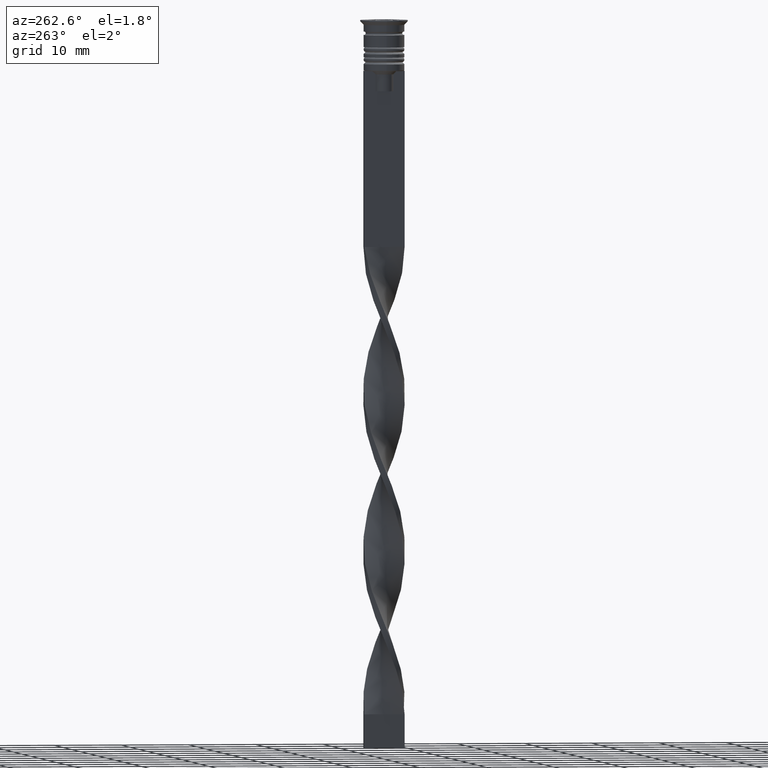
[diagram: clean part render]
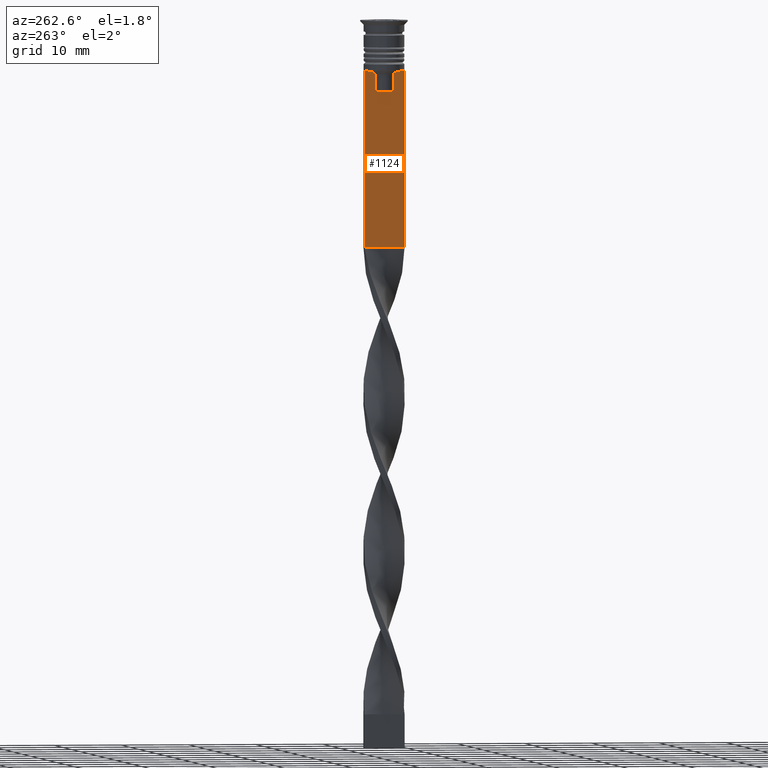
[diagram: same view with one face highlighted and labeled with its STEP entity id]
A machine part, auxiliary view. The second image highlights one B-rep face of the part: STEP entity #1124.
In plain terms, the highlighted planar face has unit normal (-1, 0, 0).
Its self-contained STEP definition (entity closure, byte-faithful):
#41 = CARTESIAN_POINT ( 'NONE',  ( -0.5000000000000001110, 1.307669683062199217, 0.000000000000000000 ) ) ;
#72 = CARTESIAN_POINT ( 'NONE',  ( -0.5000000000000001110, 3.000000000000000000, -33.50000000000000000 ) ) ;
#78 = DIRECTION ( 'NONE',  ( 0.000000000000000000, 1.000000000000000000, 0.000000000000000000 ) ) ;
#81 = B_SPLINE_CURVE_WITH_KNOTS ( 'NONE', 3,
 ( #2464, #1558, #239, #1063 ),
 .UNSPECIFIED., .F., .F.,
 ( 4, 4 ),
 ( 0.007225659348748070081, 0.007950554640278040958 ),
 .UNSPECIFIED. ) ;
#102 = CARTESIAN_POINT ( 'NONE',  ( -0.5000000000000001110, -3.000000000000000000, -7.500000000000000000 ) ) ;
#126 = LINE ( 'NONE', #682, #333 ) ;
#133 = ORIENTED_EDGE ( 'NONE', *, *, #3336, .F. ) ;
#144 = ORIENTED_EDGE ( 'NONE', *, *, #1365, .F. ) ;
#212 = DIRECTION ( 'NONE',  ( 0.000000000000000000, -1.000000000000000000, 0.000000000000000000 ) ) ;
#227 = CARTESIAN_POINT ( 'NONE',  ( -0.5000000000000001110, -2.856571371417139904, -7.500000000000000000 ) ) ;
#239 = CARTESIAN_POINT ( 'NONE',  ( -0.5000000000000001110, -1.659011726860414093, -7.667884880598472286 ) ) ;
#271 = EDGE_CURVE ( 'NONE', #3306, #3049, #1434, .T. ) ;
#288 = VERTEX_POINT ( 'NONE', #1032 ) ;
#310 = DIRECTION ( 'NONE',  ( 0.000000000000000000, 0.000000000000000000, -1.000000000000000000 ) ) ;
#313 = EDGE_LOOP ( 'NONE', ( #2565, #843, #3111, #3092, #2075, #2915, #144, #2603, #830, #3390, #133, #2379 ) ) ;
#330 = CARTESIAN_POINT ( 'NONE',  ( -0.5000000000000001110, -1.307669683062199217, 0.000000000000000000 ) ) ;
#333 = VECTOR ( 'NONE', #607, 1000.000000000000000 ) ;
#378 = CARTESIAN_POINT ( 'NONE',  ( -0.5000000000000001110, -3.000000000000000000, -1.417237469701779329 ) ) ;
#388 = VERTEX_POINT ( 'NONE', #227 ) ;
#409 = VERTEX_POINT ( 'NONE', #3386 ) ;
#457 = DIRECTION ( 'NONE',  ( 0.000000000000000000, -1.000000000000000000, 0.000000000000000000 ) ) ;
#547 = EDGE_CURVE ( 'NONE', #2773, #288, #1286, .T. ) ;
#592 = EDGE_CURVE ( 'NONE', #288, #754, #1942, .T. ) ;
#607 = DIRECTION ( 'NONE',  ( 0.000000000000000000, -1.000000000000000000, 0.000000000000000000 ) ) ;
#625 = CARTESIAN_POINT ( 'NONE',  ( -0.5000000000000001110, 1.307669683062199217, -8.000000000000000000 ) ) ;
#633 = CARTESIAN_POINT ( 'NONE',  ( -0.5000000000000001110, -3.000000000000000000, -7.500000000000000000 ) ) ;
#682 = CARTESIAN_POINT ( 'NONE',  ( -0.5000000000000001110, -3.000000000000000000, -7.500000000000000000 ) ) ;
#748 = CARTESIAN_POINT ( 'NONE',  ( -0.5000000000000001110, -3.000000000000000000, -7.500000000000000000 ) ) ;
#754 = VERTEX_POINT ( 'NONE', #977 ) ;
#755 = CARTESIAN_POINT ( 'NONE',  ( -0.5000000000000001110, -3.000000000000000000, -33.50000000000000000 ) ) ;
#775 = CARTESIAN_POINT ( 'NONE',  ( -0.5000000000000001110, 3.000000000000000000, -1.417237469701779329 ) ) ;
#830 = ORIENTED_EDGE ( 'NONE', *, *, #1916, .F. ) ;
#843 = ORIENTED_EDGE ( 'NONE', *, *, #2250, .F. ) ;
#891 = VECTOR ( 'NONE', #457, 1000.000000000000000 ) ;
#916 = VERTEX_POINT ( 'NONE', #2957 ) ;
#939 = EDGE_CURVE ( 'NONE', #990, #916, #3268, .T. ) ;
#977 = CARTESIAN_POINT ( 'NONE',  ( -0.5000000000000001110, 1.307669683062199217, -10.49999999999999822 ) ) ;
#990 = VERTEX_POINT ( 'NONE', #1103 ) ;
#1011 = AXIS2_PLACEMENT_3D ( 'NONE', #378, #1772, #1978 ) ;
#1022 = VERTEX_POINT ( 'NONE', #3220 ) ;
#1032 = CARTESIAN_POINT ( 'NONE',  ( -0.5000000000000001110, 1.307669683062199217, -8.000000000000000000 ) ) ;
#1063 = CARTESIAN_POINT ( 'NONE',  ( -0.5000000000000001110, -1.833030277982335532, -7.500000000000000000 ) ) ;
#1103 = CARTESIAN_POINT ( 'NONE',  ( -0.5000000000000001110, -3.000000000000000000, -7.500000000000000000 ) ) ;
#1124 = ADVANCED_FACE ( 'NONE', ( #3026 ), #1221, .T. ) ;
#1152 = CARTESIAN_POINT ( 'NONE',  ( -0.5000000000000001110, 1.399999999999997691, -10.49999999999999822 ) ) ;
#1174 = VECTOR ( 'NONE', #78, 1000.000000000000000 ) ;
#1221 = PLANE ( 'NONE',  #1011 ) ;
#1286 = B_SPLINE_CURVE_WITH_KNOTS ( 'NONE', 3,
 ( #3024, #2173, #2705, #625 ),
 .UNSPECIFIED., .F., .F.,
 ( 4, 4 ),
 ( 0.003278537493109840491, 0.004003794023484932504 ),
 .UNSPECIFIED. ) ;
#1304 = EDGE_CURVE ( 'NONE', #3306, #1475, #3156, .T. ) ;
#1352 = DIRECTION ( 'NONE',  ( 0.000000000000000000, 0.000000000000000000, -1.000000000000000000 ) ) ;
#1365 = EDGE_CURVE ( 'NONE', #388, #990, #2853, .T. ) ;
#1404 = DIRECTION ( 'NONE',  ( -0.000000000000000000, -0.000000000000000000, 1.000000000000000000 ) ) ;
#1423 = DIRECTION ( 'NONE',  ( 0.000000000000000000, -1.000000000000000000, 0.000000000000000000 ) ) ;
#1434 = LINE ( 'NONE', #102, #1724 ) ;
#1475 = VERTEX_POINT ( 'NONE', #72 ) ;
#1558 = CARTESIAN_POINT ( 'NONE',  ( -0.5000000000000001110, -1.484307477388859153, -7.835011508197190722 ) ) ;
#1576 = LINE ( 'NONE', #755, #1174 ) ;
#1592 = CARTESIAN_POINT ( 'NONE',  ( -0.5000000000000001110, 1.833030277982335532, -7.500000000000000000 ) ) ;
#1724 = VECTOR ( 'NONE', #212, 1000.000000000000000 ) ;
#1772 = DIRECTION ( 'NONE',  ( -1.000000000000000000, 0.000000000000000000, 0.000000000000000000 ) ) ;
#1916 = EDGE_CURVE ( 'NONE', #1022, #409, #81, .T. ) ;
#1931 = CARTESIAN_POINT ( 'NONE',  ( -0.5000000000000001110, 3.000000000000000000, -7.500000000000000000 ) ) ;
#1942 = LINE ( 'NONE', #41, #3130 ) ;
#1944 = EDGE_CURVE ( 'NONE', #3198, #1022, #2916, .T. ) ;
#1978 = DIRECTION ( 'NONE',  ( 0.000000000000000000, 0.000000000000000000, 1.000000000000000000 ) ) ;
#2057 = EDGE_CURVE ( 'NONE', #916, #1475, #1576, .T. ) ;
#2075 = ORIENTED_EDGE ( 'NONE', *, *, #2057, .F. ) ;
#2137 = VECTOR ( 'NONE', #1404, 1000.000000000000000 ) ;
#2173 = CARTESIAN_POINT ( 'NONE',  ( -0.5000000000000001110, 1.659046061654642523, -7.667851756010361619 ) ) ;
#2236 = VECTOR ( 'NONE', #1423, 1000.000000000000000 ) ;
#2250 = EDGE_CURVE ( 'NONE', #3049, #2773, #126, .T. ) ;
#2291 = VECTOR ( 'NONE', #2921, 1000.000000000000000 ) ;
#2322 = CARTESIAN_POINT ( 'NONE',  ( -0.5000000000000001110, 2.856571371417139904, -7.500000000000000000 ) ) ;
#2379 = ORIENTED_EDGE ( 'NONE', *, *, #592, .F. ) ;
#2406 = VECTOR ( 'NONE', #3048, 1000.000000000000000 ) ;
#2464 = CARTESIAN_POINT ( 'NONE',  ( -0.5000000000000001110, -1.307669683062199217, -8.000000000000000000 ) ) ;
#2565 = ORIENTED_EDGE ( 'NONE', *, *, #547, .F. ) ;
#2569 = VECTOR ( 'NONE', #1352, 1000.000000000000000 ) ;
#2603 = ORIENTED_EDGE ( 'NONE', *, *, #3016, .F. ) ;
#2705 = CARTESIAN_POINT ( 'NONE',  ( -0.5000000000000001110, 1.484355510416485391, -7.834966642958598015 ) ) ;
#2746 = LINE ( 'NONE', #633, #2406 ) ;
#2773 = VERTEX_POINT ( 'NONE', #1592 ) ;
#2853 = LINE ( 'NONE', #748, #891 ) ;
#2915 = ORIENTED_EDGE ( 'NONE', *, *, #939, .F. ) ;
#2916 = LINE ( 'NONE', #330, #2137 ) ;
#2921 = DIRECTION ( 'NONE',  ( 0.000000000000000000, 0.000000000000000000, -1.000000000000000000 ) ) ;
#2941 = CARTESIAN_POINT ( 'NONE',  ( -0.5000000000000001110, -3.000000000000000000, -1.417237469701779329 ) ) ;
#2957 = CARTESIAN_POINT ( 'NONE',  ( -0.5000000000000001110, -3.000000000000000000, -33.50000000000000000 ) ) ;
#3016 = EDGE_CURVE ( 'NONE', #409, #388, #2746, .T. ) ;
#3024 = CARTESIAN_POINT ( 'NONE',  ( -0.5000000000000001110, 1.833030277982335532, -7.500000000000000000 ) ) ;
#3026 = FACE_OUTER_BOUND ( 'NONE', #313, .T. ) ;
#3048 = DIRECTION ( 'NONE',  ( 0.000000000000000000, -1.000000000000000000, 0.000000000000000000 ) ) ;
#3049 = VERTEX_POINT ( 'NONE', #2322 ) ;
#3092 = ORIENTED_EDGE ( 'NONE', *, *, #1304, .T. ) ;
#3111 = ORIENTED_EDGE ( 'NONE', *, *, #271, .F. ) ;
#3130 = VECTOR ( 'NONE', #310, 1000.000000000000000 ) ;
#3156 = LINE ( 'NONE', #775, #2291 ) ;
#3196 = CARTESIAN_POINT ( 'NONE',  ( -0.5000000000000001110, -1.307669683062199217, -10.49999999999999822 ) ) ;
#3198 = VERTEX_POINT ( 'NONE', #3196 ) ;
#3220 = CARTESIAN_POINT ( 'NONE',  ( -0.5000000000000001110, -1.307669683062199217, -8.000000000000000000 ) ) ;
#3268 = LINE ( 'NONE', #2941, #2569 ) ;
#3285 = LINE ( 'NONE', #1152, #2236 ) ;
#3306 = VERTEX_POINT ( 'NONE', #1931 ) ;
#3336 = EDGE_CURVE ( 'NONE', #754, #3198, #3285, .T. ) ;
#3386 = CARTESIAN_POINT ( 'NONE',  ( -0.5000000000000001110, -1.833030277982335532, -7.500000000000000000 ) ) ;
#3390 = ORIENTED_EDGE ( 'NONE', *, *, #1944, .F. ) ;